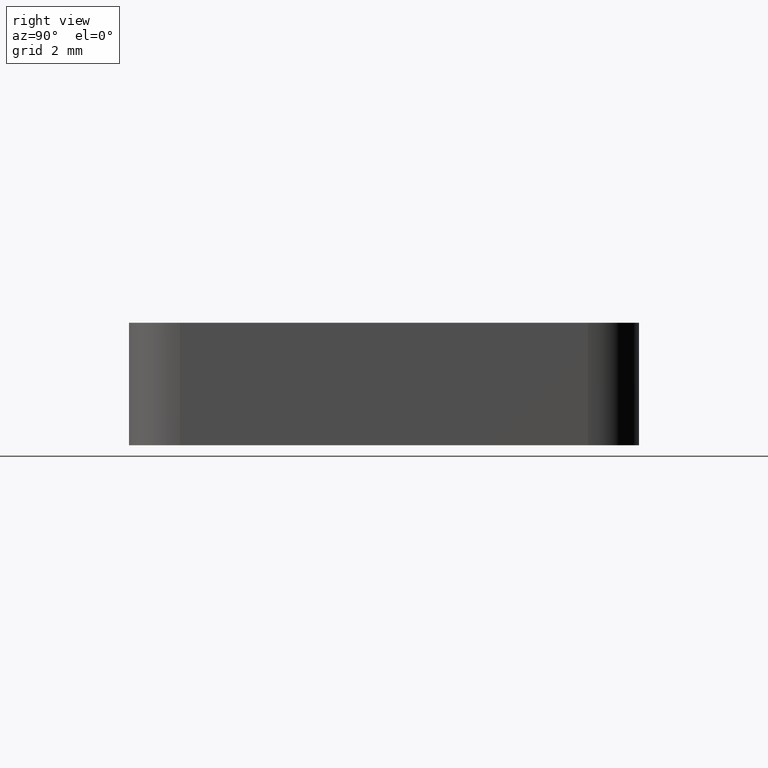
[diagram: clean part render]
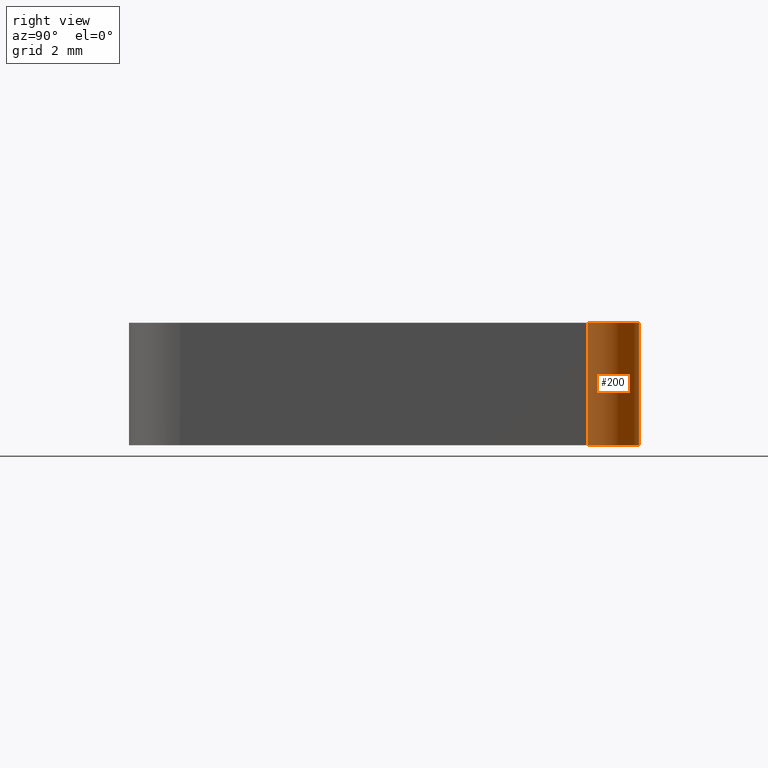
[diagram: same view with one face highlighted and labeled with its STEP entity id]
A machine part, right view. The second image highlights one B-rep face of the part: STEP entity #200.
In plain terms, the highlighted cylindrical surface (partial cylindrical patch) has radius 1 mm, axis along (0, 0, 1).
Its self-contained STEP definition (entity closure, byte-faithful):
#28=FACE_OUTER_BOUND('',#39,.T.);
#39=EDGE_LOOP('',(#156,#157,#158,#159));
#55=LINE('',#343,#72);
#57=LINE('',#349,#74);
#72=VECTOR('',#282,2.4);
#74=VECTOR('',#288,2.4);
#87=CIRCLE('',#241,1.);
#88=CIRCLE('',#242,1.);
#101=VERTEX_POINT('',#340);
#102=VERTEX_POINT('',#342);
#103=VERTEX_POINT('',#346);
#104=VERTEX_POINT('',#348);
#123=EDGE_CURVE('',#102,#101,#55,.T.);
#125=EDGE_CURVE('',#101,#103,#87,.T.);
#126=EDGE_CURVE('',#104,#103,#57,.T.);
#127=EDGE_CURVE('',#102,#104,#88,.T.);
#156=ORIENTED_EDGE('',*,*,#123,.T.);
#157=ORIENTED_EDGE('',*,*,#125,.T.);
#158=ORIENTED_EDGE('',*,*,#126,.F.);
#159=ORIENTED_EDGE('',*,*,#127,.F.);
#193=CYLINDRICAL_SURFACE('',#240,1.);
#200=ADVANCED_FACE('',(#28),#193,.T.);
#240=AXIS2_PLACEMENT_3D('',#345,#284,#285);
#241=AXIS2_PLACEMENT_3D('',#347,#286,#287);
#242=AXIS2_PLACEMENT_3D('',#350,#289,#290);
#282=DIRECTION('',(0.,0.,-1.));
#284=DIRECTION('center_axis',(0.,0.,1.));
#285=DIRECTION('ref_axis',(1.,0.,0.));
#286=DIRECTION('center_axis',(0.,0.,1.));
#287=DIRECTION('ref_axis',(1.,0.,0.));
#288=DIRECTION('',(0.,0.,-1.));
#289=DIRECTION('center_axis',(0.,0.,1.));
#290=DIRECTION('ref_axis',(1.,0.,0.));
#340=CARTESIAN_POINT('',(5.,4.,-2.4));
#342=CARTESIAN_POINT('',(5.,4.,0.));
#343=CARTESIAN_POINT('',(5.,4.,0.));
#345=CARTESIAN_POINT('Origin',(4.,4.,0.));
#346=CARTESIAN_POINT('',(4.,5.,-2.4));
#347=CARTESIAN_POINT('Origin',(4.,4.,-2.4));
#348=CARTESIAN_POINT('',(4.,5.,0.));
#349=CARTESIAN_POINT('',(4.,5.,0.));
#350=CARTESIAN_POINT('Origin',(4.,4.,0.));